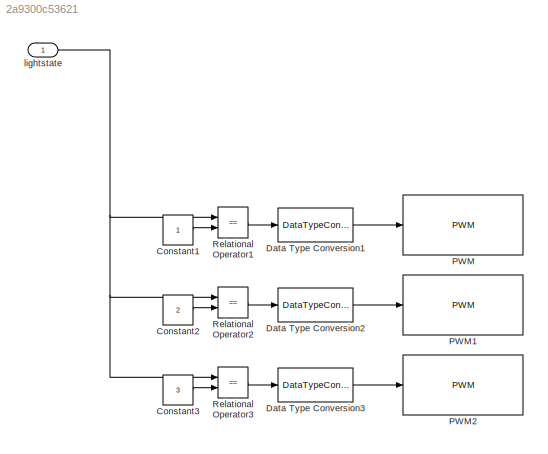
MODEL slx_2a9300c53621
KIND model
CONFIG AbsTol = auto
CONFIG EnableMultiTasking = on
CONFIG FixedStep = auto
CONFIG MaxStep = auto
CONFIG MinStep = auto
CONFIG RelTol = 1e-3
CONFIG SampleTimeConstraint = Unconstrained
CONFIG Solver = FixedStepAuto
CONFIG SolverName = FixedStepAuto
CONFIG StartTime = 0.0
CONFIG StopTime = 10.0
BLOCK [Constant] Constant1
BLOCK [Constant] Constant2
  Value = 2
BLOCK [Constant] Constant3
  Value = 3
BLOCK [DataTypeConversion] Data Type Conversion1
  RndMeth = Floor
  SaturateOnIntegerOverflow = off
BLOCK [DataTypeConversion] Data Type Conversion2
  RndMeth = Floor
  SaturateOnIntegerOverflow = off
BLOCK [DataTypeConversion] Data Type Conversion3
  RndMeth = Floor
  SaturateOnIntegerOverflow = off
BLOCK [Reference] PWM  REF=raspberrypilib/PWM
  Ports = [1]
  SourceBlock = raspberrypilib/PWM
  SourceProductBaseCode = RASPPI
  SourceProductName = Simulink Support Package for Raspberry Pi Hardware
  SourceType = raspi.internal.PWMBlock
BLOCK [Reference] PWM1  REF=raspberrypilib/PWM
  Ports = [1]
  SourceBlock = raspberrypilib/PWM
  SourceProductBaseCode = RASPPI
  SourceProductName = Simulink Support Package for Raspberry Pi Hardware
  SourceType = raspi.internal.PWMBlock
BLOCK [Reference] PWM2  REF=raspberrypilib/PWM
  Ports = [1]
  SourceBlock = raspberrypilib/PWM
  SourceProductBaseCode = RASPPI
  SourceProductName = Simulink Support Package for Raspberry Pi Hardware
  SourceType = raspi.internal.PWMBlock
BLOCK [RelationalOperator] Relational Operator1
  InputSameDT = off
  Operator = ==
  OutDataTypeStr = boolean
  Ports = [2, 1]
  RndMeth = Simplest
BLOCK [RelationalOperator] Relational Operator2
  InputSameDT = off
  Operator = ==
  OutDataTypeStr = boolean
  Ports = [2, 1]
  RndMeth = Simplest
BLOCK [RelationalOperator] Relational Operator3
  InputSameDT = off
  Operator = ==
  OutDataTypeStr = boolean
  Ports = [2, 1]
  RndMeth = Simplest
BLOCK [Inport] lightstate
  IconDisplay = Port number
LINE Constant1:1 -> Relational Operator1:2
LINE Constant2:1 -> Relational Operator2:2
LINE Constant3:1 -> Relational Operator3:2
LINE Data Type Conversion1:1 -> PWM:1
LINE Data Type Conversion2:1 -> PWM1:1
LINE Data Type Conversion3:1 -> PWM2:1
LINE Relational Operator1:1 -> Data Type Conversion1:1
LINE Relational Operator2:1 -> Data Type Conversion2:1
LINE Relational Operator3:1 -> Data Type Conversion3:1
NET lightstate:1 -> Relational Operator1:1, Relational Operator2:1, Relational Operator3:1
note: NET lines group one-source signal fan-out (src -> all destinations, sorted); 1:1 wires keep LINE
